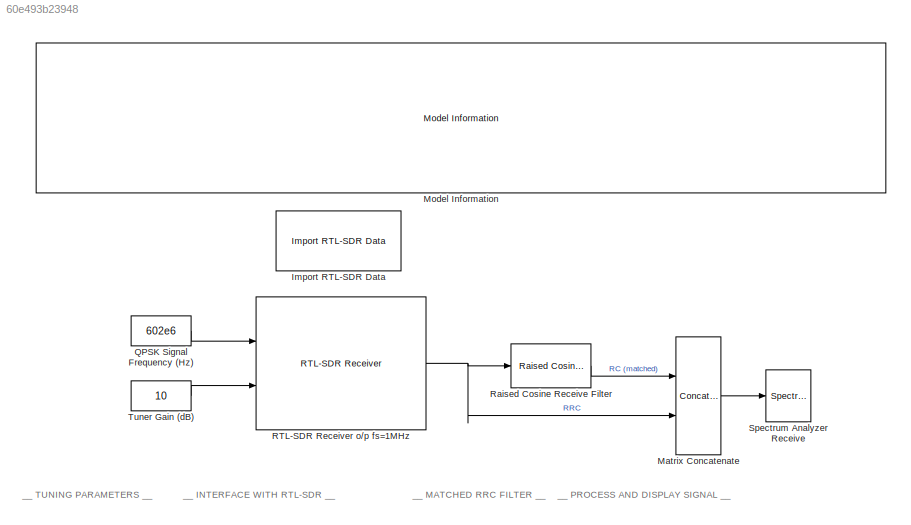
MODEL slx_60e493b23948
KIND model
CONFIG PreLoadFcn = %%%%%%%%%%%%%%%%%%%%%%%%%%%%%%%%%%%%%%%%%%%%%%%%%%%%%%%%%%%%%%%%%%%%%%%%%%%\n% check to see if Simulink library folder is missing from the MATLAB path %\n%%%%%%%%%%%%%%%%%%%%%%%%%%%%%%%%%%%%%%%%%%%%%%%%%%%%%%%%%%%%%%%%%%%%%%%%%%%\nif isempty(strfind(path, 'rtlsdr_book_library'))\n    \n    % create error window\n    fig_error = figure(...\n        'Name', 'Error: RTL-SDR Book Library',...\n        'Toolba...<+2697ch>
BLOCK [Reference] Import RTL-SDR Data  REF=rtlsdr_book_library/Additional Tools/Import RTL-SDR Data  (lib defined in slx_12414fe83126, slx_a1558d2e1022)
  Commented = on
  Ports = [0, 1]
  SourceBlock = rtlsdr_book_library/Additional Tools/Import RTL-SDR Data
  data_type = single
  filename = rec_data/qpsk_raised_cosine.mat
  frm_size = 4096
BLOCK [Concatenate] Matrix Concatenate
  ConcatenateDimension = 2
  Mode = Multidimensional array
  Ports = [2, 1]
BLOCK [Reference] Model Information  REF=rtlsdr_book_library/Additional Tools/Model Information/Model Information  (lib defined in slx_12414fe83126, slx_a1558d2e1022)
  Ports = []
  SourceBlock = rtlsdr_book_library/Additional Tools/Model Information/Model Information
BLOCK [Constant] QPSK Signal Frequency (Hz) 
  Value = 602e6
BLOCK [Reference] RTL-SDR Receiver o//p fs=1MHz  REF=sdrrlib/RTL-SDR
Receiver
  ADCRate = 1e6
  ADCRateSource = Dialog
  BypassDCBlockingFilter = off
  BypassIQBalance = off
  BypassUserLogic = off
  CacheIQCalibrationTable = off
  CenterFrequency = 433.9e6
  CenterFrequencySource = Input port
  DecimationFactor = 512
  DecimationFactorSource = Dialog
  DecimatorSelect = DDC decimator
  EnableBurstMode = off
  EnableIQCalibrationTable = on
  EnableInternalClock = off
  EnableOffsetTuning = off
  EnableRTLAGC = off
  EnableTestMode = off
  EnableTunerAGC = off
  FrameLength = 4096
  FrequencyCorrection = 0
  FrequencyCorrectionSource = Dialog
  Gain = 15
  GainSource = Input port
  IFBandwidth = 40e6
  IFBandwidthSource = Dialog
  IPAddress = 0
  IQBalanceCoefficients = 64
  IntermediateFrequency = 0
  IntermediateFrequencySource = Dialog
  LatencyOutputPort = off
  LostSamplesOutputPort = off
  NumFramesInBurst = 20
  NumMLBuffers = 128
  NumUSBBuffers = 16
  OutputDataType = single
  Ports = [2, 1]
  RFFrequencyIsTunable = logical(1)
  RTLCrystalFrequency = 28800000
  SampleTime = (4096)/(1e6)
  SamplingMode = Quadrature
  SineAmplitude = 16000
  SineFrequency = 30000
  SkipAllHardwareResetAndInitialization = off
  SourceBlock = sdrrlib/RTL-SDR\nReceiver
  SourceLibraryInfo = This block requires <a href="http://www.mathworks.com/hardware-support/rtl-sdr.html">Communications System Toolbox Support Package for RTL-SDR Radio</a>
  SourceSelect = RF data
  SourceType = RTL-SDR Receiver
  TunerCrystalFrequency = 28800000
  ctrlUDPPort = -1
  dataUDPPort = -1
  requester = UNUSED_BY_SFCN
  sdrBlockType = SDRBlockTypeSLT.SDRRxBlock
  sdrExecutionMode = SDRExecutionModeSLT.ExecModeHW
  sobjType = sdrr.internal.SDRRTLReceiverSL
  subDeviceList = nosubdev
BLOCK [Reference] Raised Cosine Receive Filter  REF=commfilt2/Raised Cosine
Receive Filter
  D = (12)/2
  InputProcessing = Columns as channels (frame based)
  LockScale = off
  N = 20
  Ports = [1, 1]
  R = 0.5
  SourceBlock = commfilt2/Raised Cosine\nReceive Filter
  SourceType = Raised Cosine Receive Filter
  UserDataPersistent = on
  accumFracLength = 30
  accumMode = Same as product output
  accumWordLength = 32
  checkCoeff = off
  checkGain = Normalized
  coeffFracLength = 15
  coeffMode = Same word length as input
  coeffWordLength = 16
  currentFiltSpan = 12
  downFactor = 1
  downOffset = 0
  filtSpan = 12
  filtType = Square root
  filterGain = 1
  framing = Allow multirate processing
  launchFVT = on
  outputFracLength = 15
  outputMode = Same as accumulator
  outputWordLength = 16
  overflowMode = off
  prodOutputFracLength = 30
  prodOutputMode = Same as input
  prodOutputWordLength = 32
  rateMode = Downsampling
  roundingMode = Floor
  sampMode = Mute
  saveAsFlag = 0
  variableName = rcRxFilt
BLOCK [SpectrumAnalyzer] Spectrum Analyzer Receive
  Ports = [1]
  ScopeSpecificationString = spbscopes.SpectrumAnalyzerBlockCfg('CurrentConfiguration', extmgr.ConfigurationSet(extmgr.Configuration('Core','General UI',true,'ShowStatusbar',false,'FigureColor',[0.941176470588235 0.941176470588235 0.941176470588235]),extmgr.Configuration('Core','Source UI',true),extmgr.Configuration('Sources','WiredSimulink',true),extmgr.Configuration('Sources','Simulink',false),extmgr.Configuration('Sources'...<+6653ch>
  StartFcn = startfcn_spectrum_analyzer;
BLOCK [Constant] Tuner Gain (dB)
  Value = 10
ANNOTATION (root): __ INTERFACE WITH RTL-SDR __
ANNOTATION (root): __ MATCHED RRC FILTER __
ANNOTATION (root): __ PROCESS AND DISPLAY SIGNAL __
ANNOTATION (root): __ TUNING PARAMETERS __
LINE Matrix Concatenate:1 -> Spectrum Analyzer Receive:1
LINE QPSK Signal Frequency (Hz) :1 -> RTL-SDR Receiver o//p fs=1MHz:1
NET RTL-SDR Receiver o//p fs=1MHz:1 -> Matrix Concatenate:2, Raised Cosine Receive Filter:1
LINE Raised Cosine Receive Filter:1 -> Matrix Concatenate:1
LINE Tuner Gain (dB):1 -> RTL-SDR Receiver o//p fs=1MHz:2
note: NET lines group one-source signal fan-out (src -> all destinations, sorted); 1:1 wires keep LINE
